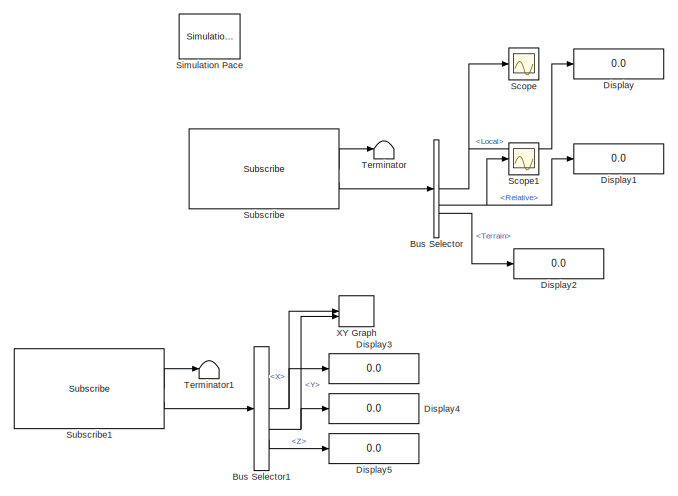
[diagram: root canvas - part 1/2, top left region]
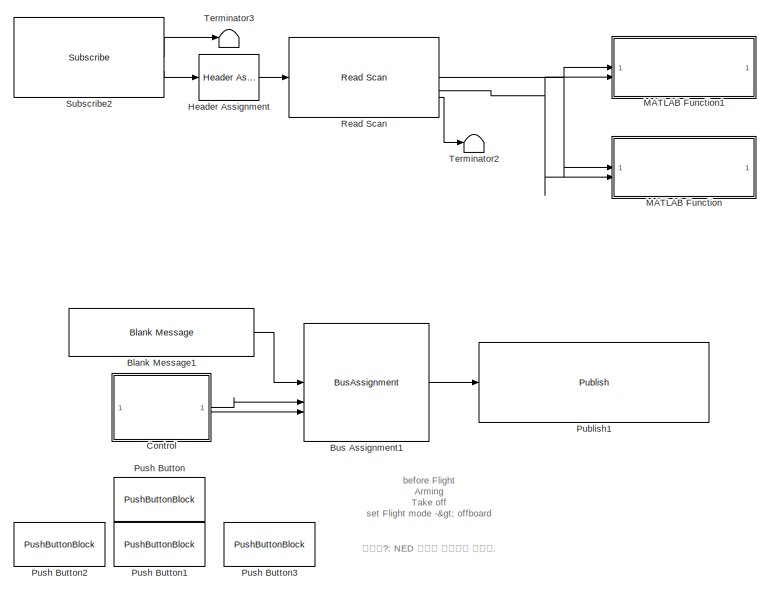
[diagram: root canvas - part 2/2, middle right region]
MODEL slx_3d7860fef1e0
KIND model
CONFIG AbsTol = auto
CONFIG EnableMultiTasking = off
CONFIG FixedStep = auto
CONFIG MaxStep = auto
CONFIG MinStep = auto
CONFIG RelTol = 1e-3
CONFIG SampleTimeConstraint = Unconstrained
CONFIG SolverName = FixedStepAuto
CONFIG StartTime = 0.0
CONFIG StopTime = Inf
WORKSPACE source: mxarray member
WORKSPACE SL_ROS_VariableLengthArrays_MaxSizes: object (value not decoded)
BLOCK [Reference] Blank Message1  REF=robotlib/Blank Message
  SourceBlock = robotlib/Blank Message
  SourceType = ROS Blank Message
BLOCK [BusAssignment] Bus Assignment1
  AssignedSignals = Twist.Linear.X,Twist.Angular.Z
  NameLocation = top
BLOCK [BusSelector] Bus Selector
  OutputSignals = Local,Relative,Terrain
BLOCK [BusSelector] Bus Selector1
  OutputSignals = Pose.Position.X,Pose.Position.Y,Pose.Position.Z
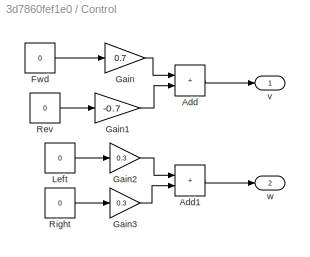
BLOCK [SubSystem] Control
BLOCK [Sum] Control/Add
  IconShape = rectangular
BLOCK [Sum] Control/Add1
  IconShape = rectangular
BLOCK [Constant] Control/Fwd
  Value = 0
BLOCK [Gain] Control/Gain
  Gain = 0.7
BLOCK [Gain] Control/Gain1
  Gain = -0.7
BLOCK [Gain] Control/Gain2
  Gain = 0.3
BLOCK [Gain] Control/Gain3
  Gain = 0.3
BLOCK [Constant] Control/Left
  Value = 0
BLOCK [Constant] Control/Rev
  Value = 0
BLOCK [Constant] Control/Right
  Value = 0
BLOCK [Outport] Control/v
BLOCK [Outport] Control/w
  Port = 2
BLOCK [Display] Display
  Decimation = 1
BLOCK [Display] Display1
  Decimation = 1
BLOCK [Display] Display2
  Decimation = 1
BLOCK [Display] Display3
  Decimation = 1
BLOCK [Display] Display4
  Decimation = 1
BLOCK [Display] Display5
  Decimation = 1
BLOCK [Reference] Header Assignment  REF=robotlib/Header Assignment
  SourceBlock = robotlib/Header Assignment
  SourceType = ROS Header
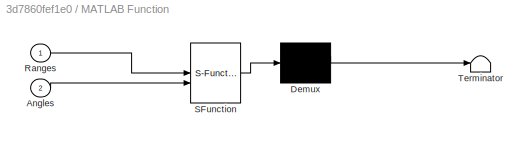
BLOCK [SubSystem] MATLAB Function
  Commented = on
  ErrorFcn = Stateflow.Translate.translate
  LibrarySourceBlock = simulink/User-Defined\nFunctions/MATLAB Function
  PermitHierarchicalResolution = ExplicitOnly
  SFBlockType = MATLAB Function
  TreatAsAtomicUnit = on
BLOCK [Demux] MATLAB Function/ Demux 
  Outputs = 1
BLOCK [S-Function] MATLAB Function/ SFunction 
  EnableBusSupport = on
  FunctionName = sf_sfun
  PortCounts = [2 1]
  SFcnIsStateOwnerBlock = off
  SFunctionDeploymentMode = off
  Tag = Stateflow S-Function 2
BLOCK [Terminator] MATLAB Function/ Terminator 
BLOCK [Inport] MATLAB Function/Angles
  Port = 2
BLOCK [Inport] MATLAB Function/Ranges
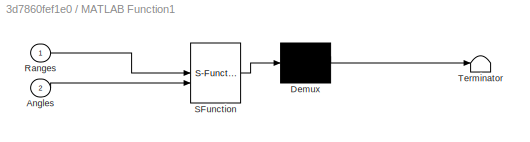
BLOCK [SubSystem] MATLAB Function1
  ErrorFcn = Stateflow.Translate.translate
  LibrarySourceBlock = simulink/User-Defined\nFunctions/MATLAB Function
  PermitHierarchicalResolution = ExplicitOnly
  SFBlockType = MATLAB Function
  TreatAsAtomicUnit = on
BLOCK [Demux] MATLAB Function1/ Demux 
  Outputs = 1
BLOCK [S-Function] MATLAB Function1/ SFunction 
  EnableBusSupport = on
  FunctionName = sf_sfun
  PortCounts = [2 1]
  SFcnIsStateOwnerBlock = off
  SFunctionDeploymentMode = off
  Tag = Stateflow S-Function 1
BLOCK [Terminator] MATLAB Function1/ Terminator 
BLOCK [Inport] MATLAB Function1/Angles
  Port = 2
BLOCK [Inport] MATLAB Function1/Ranges
BLOCK [Reference] Publish1  REF=robotlib/Publish
  SourceBlock = robotlib/Publish
  SourceType = ROS Publish
BLOCK [PushButtonBlock] Push Button
  ButtonText = Fwd
  OffValue = 0.000000
BLOCK [PushButtonBlock] Push Button1
  ButtonText = Back
  OffValue = 0.000000
BLOCK [PushButtonBlock] Push Button2
  ButtonText = Left
  OffValue = 0.000000
BLOCK [PushButtonBlock] Push Button3
  ButtonText = Right
  OffValue = 0.000000
BLOCK [Reference] Read Scan  REF=robotlib/Read Scan
  SourceBlock = robotlib/Read Scan
  SourceType = ros.slros.internal.block.ReadScan
BLOCK [Scope] Scope
  Floating = off
  NumInputPorts = 1
  ScopeSpecificationString = Simulink.scopes.TimeScopeBlockCfg('CurrentConfiguration', extmgr.ConfigurationSet(extmgr.Configuration('Core','General UI',true),extmgr.Configuration('Core','Source UI',true),extmgr.Configuration('Sources','WiredSimulink',true),extmgr.Configuration('Visuals','Time Domain',true,'SerializedDisplays',{struct('MinYLimReal','1.68635','MaxYLimReal','3.68635','YLabelReal','','MinYLimMag','1.68635','MaxYL...<+1325ch>
BLOCK [Scope] Scope1
  Floating = off
  NumInputPorts = 1
  ScopeSpecificationString = Simulink.scopes.TimeScopeBlockCfg('CurrentConfiguration', extmgr.ConfigurationSet(extmgr.Configuration('Core','General UI',true),extmgr.Configuration('Core','Source UI',true),extmgr.Configuration('Sources','WiredSimulink',true,'DataLoggingVariableName','ScopeData1'),extmgr.Configuration('Visuals','Time Domain',true,'SerializedDisplays',{struct('MinYLimReal','1.35055','MaxYLimReal','3.35055','YLabe...<+1367ch>
BLOCK [Reference] Simulation Pace  REF=aerolibanimutils/Simulation Pace
  AttributesFormatString = %<SleepMode>\n%<SimulationPace> sec/sec
  SourceBlock = aerolibanimutils/Simulation Pace
  SourceType = Simulation Pace
BLOCK [Reference] Subscribe  REF=robotlib/Subscribe
  SourceBlock = robotlib/Subscribe
  SourceType = ROS Subscribe
BLOCK [Reference] Subscribe1  REF=robotlib/Subscribe
  SourceBlock = robotlib/Subscribe
  SourceType = ROS Subscribe
BLOCK [Reference] Subscribe2  REF=robotlib/Subscribe
  SourceBlock = robotlib/Subscribe
  SourceType = ROS Subscribe
BLOCK [Terminator] Terminator
BLOCK [Terminator] Terminator1
BLOCK [Terminator] Terminator2
BLOCK [Terminator] Terminator3
BLOCK [Record] XY Graph
  CompatibilityTag = XY
  FileSettingsInternal = {"entries":[{"content":{"excelSettings":{"content":{},"type":"Streamout.ExcelSettings"}},"type":"Streamout.FileSettingStorage","uuid":""}],"packageUris":["http:\/\/schema.mathworks.com\/mf0\/streamout_blocks\/R2020a"],"version":"1.0"}
  Layout = [1 1]
  SignalsInternal = {"entries":[{"content":{"signals":[{"content":{"blockPath":[],"dimensions":[1],"domain":"","lineColor":"#a2142f","plots":[1],"port":1,"signalID":338,"signalName":"XY Graph:1"},"type":"RecordBlkView.Signal","uuid":""},{"content":{"blockPath":[],"dimensions":[1],"domain":"","lineColor":"#139fff","plots":[1],"port":2,"signalID":341,"signalName":"XY Graph:2"},"type":"RecordBlkView.Signal","uuid":""}]}...<+144ch>
  VisualizationBindings = {"xyplotplugin":{"info":[{"series":[{"bindingParametersList":[{"parameter":"X-Axis","signalID":338,"signalName":"XY Graph:1"},{"parameter":"Y-Axis","signalID":341,"signalName":"XY Graph:2"}],"seriesID":58420}],"subplotID":1}]}}
ANNOTATION (root): before Flight Arming Take off set Flight mode -> offboard
ANNOTATION (root): 문제점?: NED 좌표계 기준으로 움직임.
LINE Blank Message1:1 -> Bus Assignment1:1
LINE Bus Assignment1:1 -> Publish1:1
NET Bus Selector1:1 -> Display3:1, XY Graph:1
NET Bus Selector1:2 -> Display4:1, XY Graph:2
LINE Bus Selector1:3 -> Display5:1
NET Bus Selector:1 -> Display:1, Scope:1
NET Bus Selector:2 -> Display1:1, Scope1:1
LINE Bus Selector:3 -> Display2:1
LINE Control/Add1:1 -> Control/w:1
LINE Control/Add:1 -> Control/v:1
LINE Control/Fwd:1 -> Control/Gain:1
LINE Control/Gain1:1 -> Control/Add:2
LINE Control/Gain2:1 -> Control/Add1:1
LINE Control/Gain3:1 -> Control/Add1:2
LINE Control/Gain:1 -> Control/Add:1
LINE Control/Left:1 -> Control/Gain2:1
LINE Control/Rev:1 -> Control/Gain1:1
LINE Control/Right:1 -> Control/Gain3:1
LINE Control:1 -> Bus Assignment1:2
LINE Control:2 -> Bus Assignment1:3
LINE Header Assignment:1 -> Read Scan:1
NET Read Scan:1 -> MATLAB Function1:1, MATLAB Function:1
NET Read Scan:2 -> MATLAB Function1:2, MATLAB Function:2
LINE Read Scan:3 -> Terminator2:1
LINE Subscribe1:1 -> Terminator1:1
LINE Subscribe1:2 -> Bus Selector1:1
LINE Subscribe2:1 -> Terminator3:1
LINE Subscribe2:2 -> Header Assignment:1
LINE Subscribe:1 -> Terminator:1
LINE Subscribe:2 -> Bus Selector:1
note: NET lines group one-source signal fan-out (src -> all destinations, sorted); 1:1 wires keep LINE
CHART MATLAB Function states=1 transitions=1
  STATE_LABEL 'eML_blk_kernel()'
  STATE_LABEL "SCRIPT:\nfunction plotLaser(Ranges, Angles)\ncoder.extrinsic('polarplot');\npersistent p;\nif isempty(p)\n    p = polarplot(0, 0, '.');\n    set(gca, 'ThetaZeroLocation', 'top', 'ThetaLim', [-135 135], ...\n        'RAxisLocation', 0, 'RLim', [0 10]);\nend\nif ishandle(p)\n    set(p, 'ThetaData', Angles);\n    set(p, 'RData', Ranges);\n    drawnow limitrate;\nend"
CHART MATLAB Function1 states=1 transitions=1
  STATE_LABEL 'eML_blk_kernel()'
  STATE_LABEL "SCRIPT:\nfunction plotLaserCart(Ranges, Angles)\ncoder.extrinsic('plot');\npersistent p;\n\nX = Ranges .* sin(Angles);\nY = Ranges .* -cos(Angles);\n\nif isempty(p)\n    p = plot(0, 0, '.');\n    set(gca,'XLim',[-5 5],'YLim',[-5 5])\nend\nif ishandle(p)\n    set(p, 'XData', X);\n    set(p, 'YData', Y);\n    drawnow limitrate;\nend"
CHART  states=0 transitions=0
CHART  states=0 transitions=0
